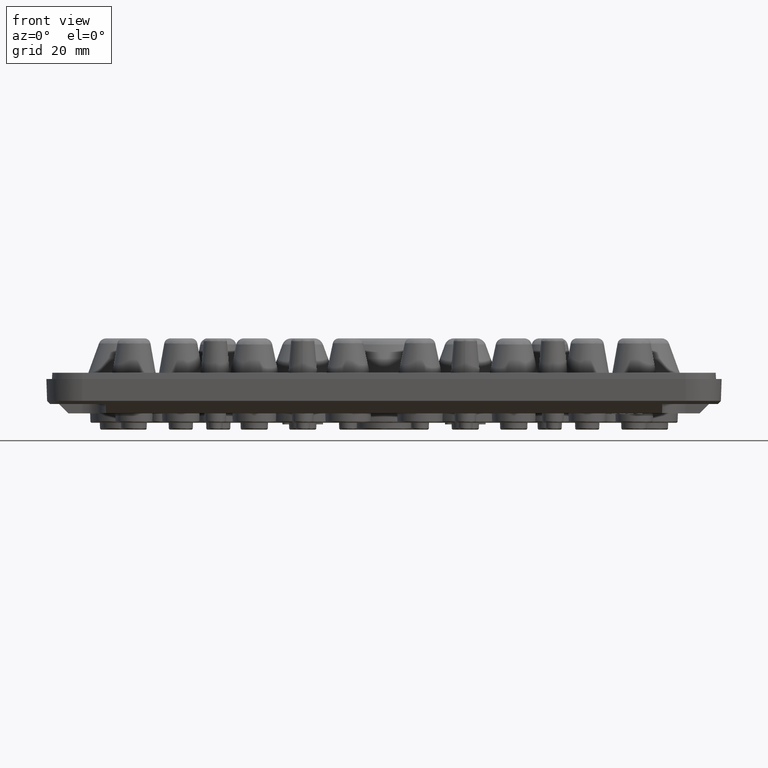
[diagram: clean part render]
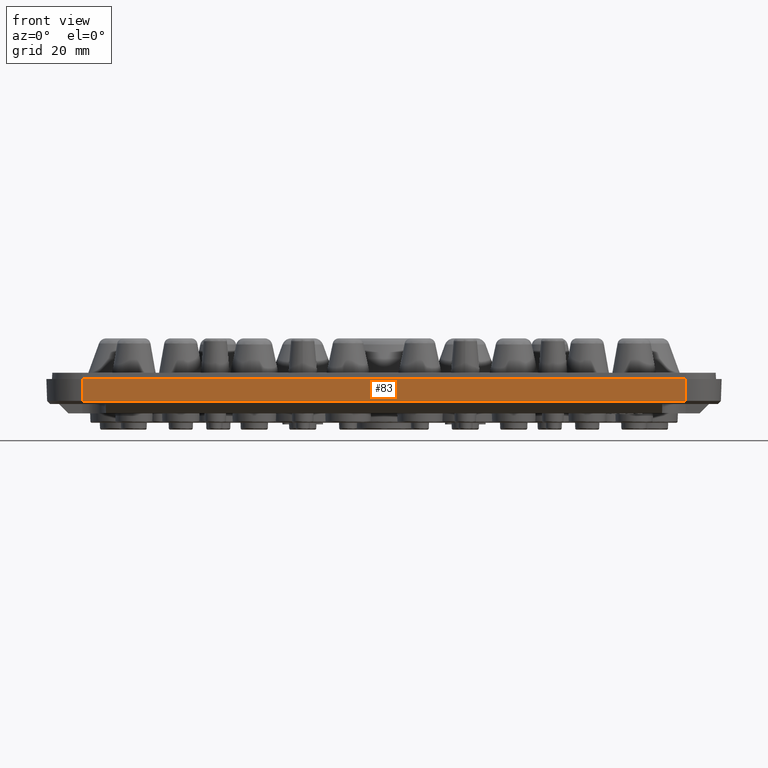
[diagram: same view with one face highlighted and labeled with its STEP entity id]
A machine part, front view. The second image highlights one B-rep face of the part: STEP entity #83.
In plain terms, the highlighted planar face has unit normal (-0, -0.9994, -0.0349).
Its self-contained STEP definition (entity closure, byte-faithful):
#83 = ADVANCED_FACE ( 'NONE', ( #451 ), #26964, .T. ) ;
#451 = FACE_OUTER_BOUND ( 'NONE', #21632, .T. ) ;
#682 = DIRECTION ( 'NONE',  ( -0.0000000000000000000, -0.03489949670250051800, 0.9993908270190956500 ) ) ;
#1295 = LINE ( 'NONE', #24756, #8561 ) ;
#4508 = CARTESIAN_POINT ( 'NONE',  ( -163.8135167763211900, -101.6658476301233900, -7.000304586490451600 ) ) ;
#6805 = LINE ( 'NONE', #13371, #11832 ) ;
#8561 = VECTOR ( 'NONE', #57403, 1000.000000000000100 ) ;
#11832 = VECTOR ( 'NONE', #47324, 1000.000000000000100 ) ;
#12043 = CARTESIAN_POINT ( 'NONE',  ( -163.8135167763211900, -101.6658476301233900, -7.000304586490451600 ) ) ;
#13371 = CARTESIAN_POINT ( 'NONE',  ( -163.8135167763211900, -101.9103036529602500, 0.0000000000000000000 ) ) ;
#14920 = LINE ( 'NONE', #48346, #24308 ) ;
#16864 = ORIENTED_EDGE ( 'NONE', *, *, #50431, .T. ) ;
#17125 = CARTESIAN_POINT ( 'NONE',  ( 29.18648322367879500, -101.6658476301234500, -7.000304586490425900 ) ) ;
#18584 = AXIS2_PLACEMENT_3D ( 'NONE', #55756, #41994, #682 ) ;
#18842 = CARTESIAN_POINT ( 'NONE',  ( -99.48018344298786500, -101.6658369937288200, -7.000609172980897900 ) ) ;
#21632 = EDGE_LOOP ( 'NONE', ( #16864, #52454, #24573, #30824 ) ) ;
#24308 = VECTOR ( 'NONE', #30079, 1000.000000000000000 ) ;
#24573 = ORIENTED_EDGE ( 'NONE', *, *, #39387, .F. ) ;
#24756 = CARTESIAN_POINT ( 'NONE',  ( 29.18648322367879200, -101.9103036529602900, -0.0000000000000000000 ) ) ;
#26964 = PLANE ( 'NONE',  #18584 ) ;
#27772 = CARTESIAN_POINT ( 'NONE',  ( 29.18648322367879200, -101.9103036529602900, -0.0000000000000000000 ) ) ;
#28496 = CARTESIAN_POINT ( 'NONE',  ( -163.8135167763211900, -101.9103036529602500, 0.0000000000000000000 ) ) ;
#30079 = DIRECTION ( 'NONE',  ( -1.000000000000000000, 1.836909530733565900E-016, 0.0000000000000000000 ) ) ;
#30824 = ORIENTED_EDGE ( 'NONE', *, *, #44513, .T. ) ;
#35374 = VERTEX_POINT ( 'NONE', #28496 ) ;
#35958 = B_SPLINE_CURVE_WITH_KNOTS ( 'NONE', 3,
 ( #56125, #55322, #18842, #4508 ),
 .UNSPECIFIED., .F., .F.,
 ( 4, 4 ),
 ( 0.0000000000000000000, 1.000000000000000000 ),
 .UNSPECIFIED. ) ;
#39387 = EDGE_CURVE ( 'NONE', #51890, #40364, #1295, .T. ) ;
#40364 = VERTEX_POINT ( 'NONE', #17125 ) ;
#41994 = DIRECTION ( 'NONE',  ( -1.835790535079077500E-016, -0.9993908270190957600, -0.03489949670250052500 ) ) ;
#44513 = EDGE_CURVE ( 'NONE', #51890, #35374, #14920, .T. ) ;
#44801 = EDGE_CURVE ( 'NONE', #40364, #55755, #35958, .T. ) ;
#47324 = DIRECTION ( 'NONE',  ( 0.0000000000000000000, 0.03489949670250051100, -0.9993908270190956500 ) ) ;
#48346 = CARTESIAN_POINT ( 'NONE',  ( -31.80491194038745200, -101.9103036529602800, 0.0000000000000000000 ) ) ;
#50431 = EDGE_CURVE ( 'NONE', #35374, #55755, #6805, .T. ) ;
#51890 = VERTEX_POINT ( 'NONE', #27772 ) ;
#52454 = ORIENTED_EDGE ( 'NONE', *, *, #44801, .F. ) ;
#55322 = CARTESIAN_POINT ( 'NONE',  ( -35.14685010965453000, -101.6658369937288500, -7.000609172980903200 ) ) ;
#55755 = VERTEX_POINT ( 'NONE', #12043 ) ;
#55756 = CARTESIAN_POINT ( 'NONE',  ( -163.8135167763211900, -101.9103036529602500, 0.0000000000000000000 ) ) ;
#56125 = CARTESIAN_POINT ( 'NONE',  ( 29.18648322367879500, -101.6658476301234500, -7.000304586490425900 ) ) ;
#57403 = DIRECTION ( 'NONE',  ( 0.0000000000000000000, 0.03489949670250139900, -0.9993908270190956500 ) ) ;